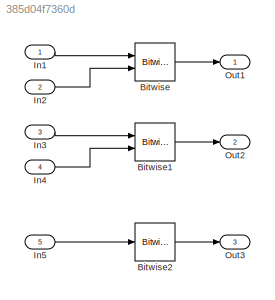
MODEL slx_385d04f7360d
KIND model
CONFIG AbsTol = auto
CONFIG EnableMultiTasking = off
CONFIG FixedStep = 0.200000
CONFIG MaxStep = auto
CONFIG MinStep = auto
CONFIG RelTol = 1e-3
CONFIG SampleTimeConstraint = Unconstrained
CONFIG Solver = ode3
CONFIG SolverName = ode3
CONFIG StartTime = 0.0
CONFIG StopTime = 10.0
BLOCK [Reference] Bitwise  REF=simulink/Logic and Bit
Operations/Bitwise
Operator
  Ports = [2, 1]
  SourceBlock = simulink/Logic and Bit\nOperations/Bitwise\nOperator
  SourceProductBaseCode = SL
  SourceProductName = Simulink
  SourceType = Bitwise Operator
BLOCK [Reference] Bitwise1  REF=simulink/Logic and Bit
Operations/Bitwise
Operator
  Ports = [2, 1]
  SourceBlock = simulink/Logic and Bit\nOperations/Bitwise\nOperator
  SourceProductBaseCode = SL
  SourceProductName = Simulink
  SourceType = Bitwise Operator
BLOCK [Reference] Bitwise2  REF=simulink/Logic and Bit
Operations/Bitwise
Operator
  Ports = [1, 1]
  SourceBlock = simulink/Logic and Bit\nOperations/Bitwise\nOperator
  SourceProductBaseCode = SL
  SourceProductName = Simulink
  SourceType = Bitwise Operator
BLOCK [Inport] In1
  IconDisplay = Port number
  OutDataTypeStr = int8
BLOCK [Inport] In2
  IconDisplay = Port number
  OutDataTypeStr = int8
  Port = 2
BLOCK [Inport] In3
  IconDisplay = Port number
  OutDataTypeStr = int8
  Port = 3
BLOCK [Inport] In4
  IconDisplay = Port number
  OutDataTypeStr = int8
  Port = 4
  PortDimensions = 3
BLOCK [Inport] In5
  IconDisplay = Port number
  OutDataTypeStr = int8
  Port = 5
  PortDimensions = 3
BLOCK [Outport] Out1
  IconDisplay = Port number
BLOCK [Outport] Out2
  IconDisplay = Port number
  Port = 2
BLOCK [Outport] Out3
  IconDisplay = Port number
  Port = 3
LINE Bitwise1:1 -> Out2:1
LINE Bitwise2:1 -> Out3:1
LINE Bitwise:1 -> Out1:1
LINE In1:1 -> Bitwise:1
LINE In2:1 -> Bitwise:2
LINE In3:1 -> Bitwise1:1
LINE In4:1 -> Bitwise1:2
LINE In5:1 -> Bitwise2:1
